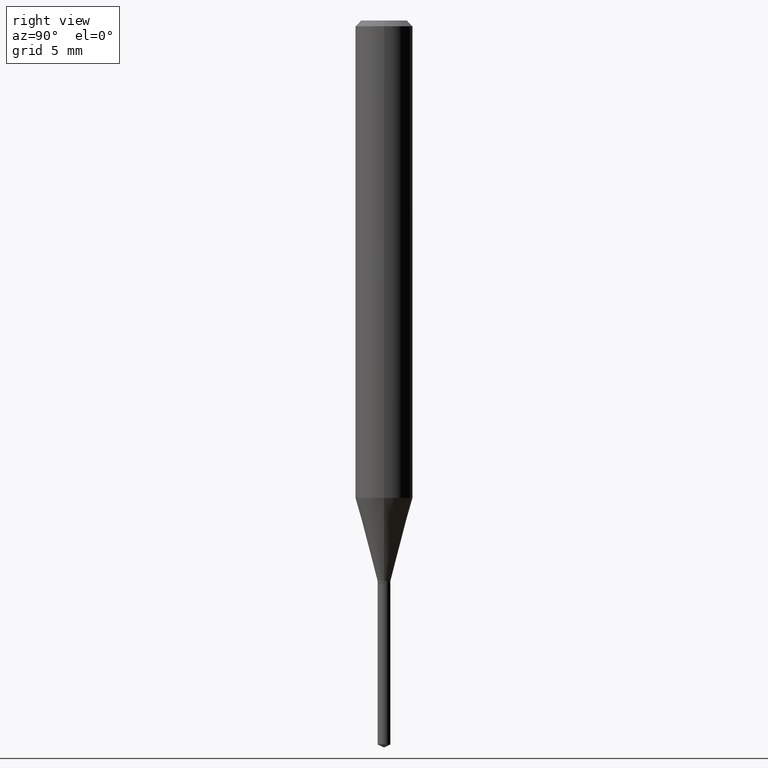
[diagram: clean part render]
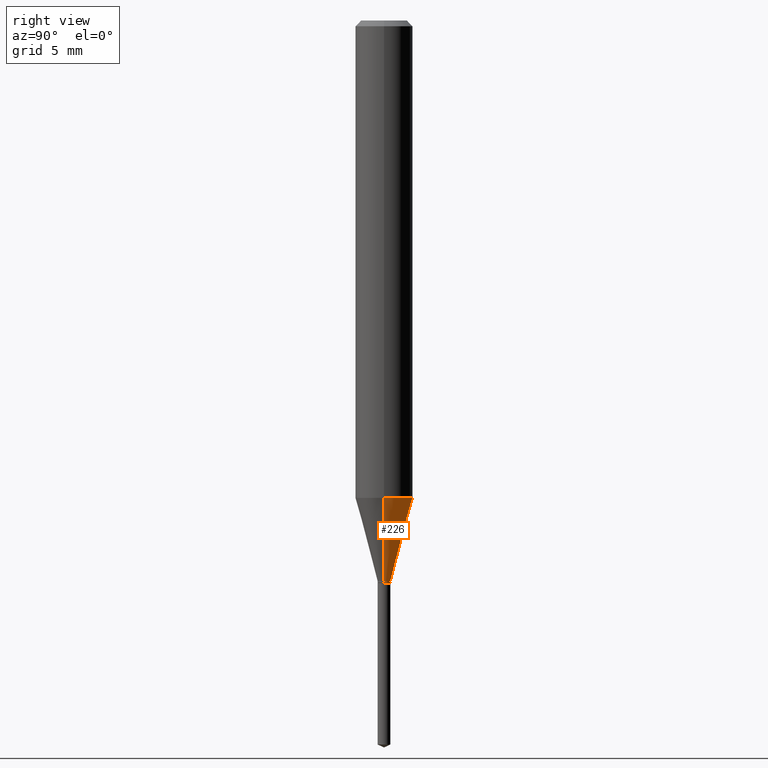
[diagram: same view with one face highlighted and labeled with its STEP entity id]
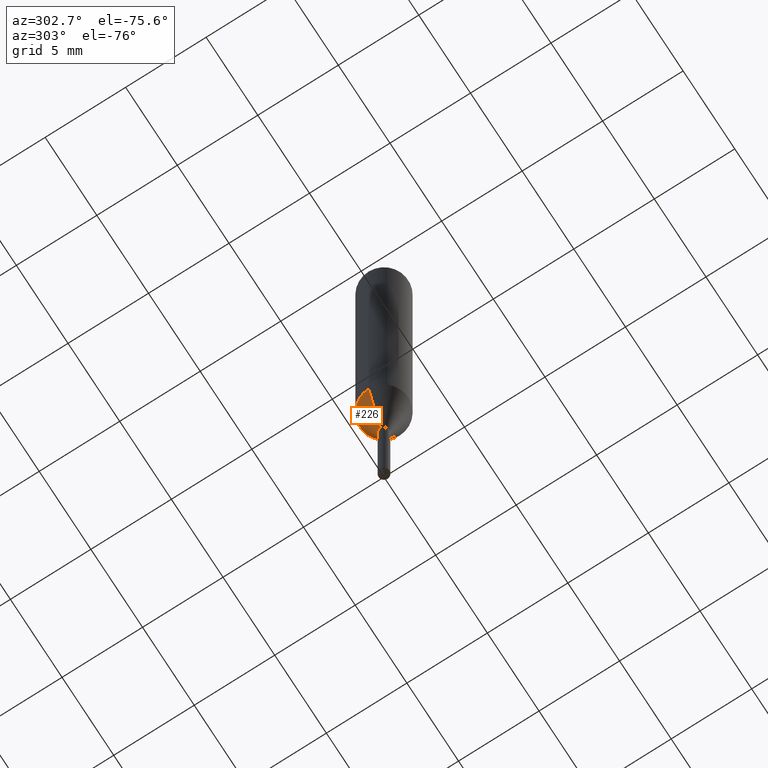
[diagram: same view with one face highlighted and labeled with its STEP entity id]
A machine part, right view. The second image highlights one B-rep face of the part: STEP entity #226.
A second angle (auxiliary view) of the same face is appended — the face is thin or edge-on in the first view.
In plain terms, the highlighted conical surface has half-angle 15 deg.
Its self-contained STEP definition (entity closure, byte-faithful):
#37 = CIRCLE ( 'NONE', #79, 0.05905000000000011628 ) ;
#69 = DIRECTION ( 'NONE',  ( 1.000000000000000000, -6.982962677686266711E-15, 0.000000000000000000 ) ) ;
#79 = AXIS2_PLACEMENT_3D ( 'NONE', #211, #170, #69 ) ;
#82 = CARTESIAN_POINT ( 'NONE',  ( -0.01319999999999999993, -3.939742175578210590E-15, -1.153499999999999970 ) ) ;
#101 = AXIS2_PLACEMENT_3D ( 'NONE', #335, #439, #342 ) ;
#114 = CARTESIAN_POINT ( 'NONE',  ( 0.05905000000000011628, -3.842324483824382352E-15, -0.9823854704729667597 ) ) ;
#123 = EDGE_CURVE ( 'NONE', #472, #433, #168, .T. ) ;
#139 = CARTESIAN_POINT ( 'NONE',  ( -0.01319999999999999993, -3.933632083235234933E-15, -1.153499999999999970 ) ) ;
#150 = EDGE_LOOP ( 'NONE', ( #183, #408, #396, #231 ) ) ;
#161 = CARTESIAN_POINT ( 'NONE',  ( -0.05905000000000011628, -3.010405052240667150E-15, -0.9823854704729667597 ) ) ;
#167 = CARTESIAN_POINT ( 'NONE',  ( 0.01319999999999999993, -4.119598831701026627E-15, -1.153499999999999970 ) ) ;
#168 = CIRCLE ( 'NONE', #101, 0.01319999999999999993 ) ;
#170 = DIRECTION ( 'NONE',  ( -2.445468806185136597E-29, 3.491481338843145583E-15, 1.000000000000000000 ) ) ;
#179 = EDGE_CURVE ( 'NONE', #433, #371, #261, .T. ) ;
#183 = ORIENTED_EDGE ( 'NONE', *, *, #123, .T. ) ;
#208 = DIRECTION ( 'NONE',  ( 0.2588190451025213501, 1.565188264969621968E-15, 0.9659258262890682012 ) ) ;
#211 = CARTESIAN_POINT ( 'NONE',  ( 2.402393023691149824E-29, -3.429980537707007431E-15, -0.9823854704729667597 ) ) ;
#217 = CARTESIAN_POINT ( 'NONE',  ( 2.820848267934554903E-29, -4.027423724355568083E-15, -1.153499999999999970 ) ) ;
#226 = ADVANCED_FACE ( 'NONE', ( #338 ), #373, .T. ) ;
#231 = ORIENTED_EDGE ( 'NONE', *, *, #479, .F. ) ;
#238 = VECTOR ( 'NONE', #415, 39.37007874015747433 ) ;
#261 = LINE ( 'NONE', #139, #238 ) ;
#271 = VERTEX_POINT ( 'NONE', #114 ) ;
#282 = LINE ( 'NONE', #167, #351 ) ;
#296 = DIRECTION ( 'NONE',  ( 1.000000000000000000, -6.982962677686252511E-15, 0.000000000000000000 ) ) ;
#330 = AXIS2_PLACEMENT_3D ( 'NONE', #217, #480, #296 ) ;
#335 = CARTESIAN_POINT ( 'NONE',  ( 2.820848267934554903E-29, -4.027423724355568083E-15, -1.153499999999999970 ) ) ;
#338 = FACE_OUTER_BOUND ( 'NONE', #150, .T. ) ;
#342 = DIRECTION ( 'NONE',  ( 1.000000000000000000, -6.982962677686252511E-15, 0.000000000000000000 ) ) ;
#351 = VECTOR ( 'NONE', #208, 39.37007874015747433 ) ;
#371 = VERTEX_POINT ( 'NONE', #161 ) ;
#373 = CONICAL_SURFACE ( 'NONE', #330, 0.01319999999999999993, 0.2617993877991500740 ) ;
#396 = ORIENTED_EDGE ( 'NONE', *, *, #465, .F. ) ;
#408 = ORIENTED_EDGE ( 'NONE', *, *, #179, .T. ) ;
#415 = DIRECTION ( 'NONE',  ( -0.2588190451025213501, 5.211531920934551042E-15, 0.9659258262890682012 ) ) ;
#433 = VERTEX_POINT ( 'NONE', #82 ) ;
#439 = DIRECTION ( 'NONE',  ( -2.445468806185136597E-29, 3.491481338843145583E-15, 1.000000000000000000 ) ) ;
#465 = EDGE_CURVE ( 'NONE', #271, #371, #37, .T. ) ;
#466 = CARTESIAN_POINT ( 'NONE',  ( 0.01319999999999999993, -4.119598831701026627E-15, -1.153499999999999970 ) ) ;
#472 = VERTEX_POINT ( 'NONE', #466 ) ;
#479 = EDGE_CURVE ( 'NONE', #472, #271, #282, .T. ) ;
#480 = DIRECTION ( 'NONE',  ( -2.445468806185136597E-29, 3.491481338843145583E-15, 1.000000000000000000 ) ) ;